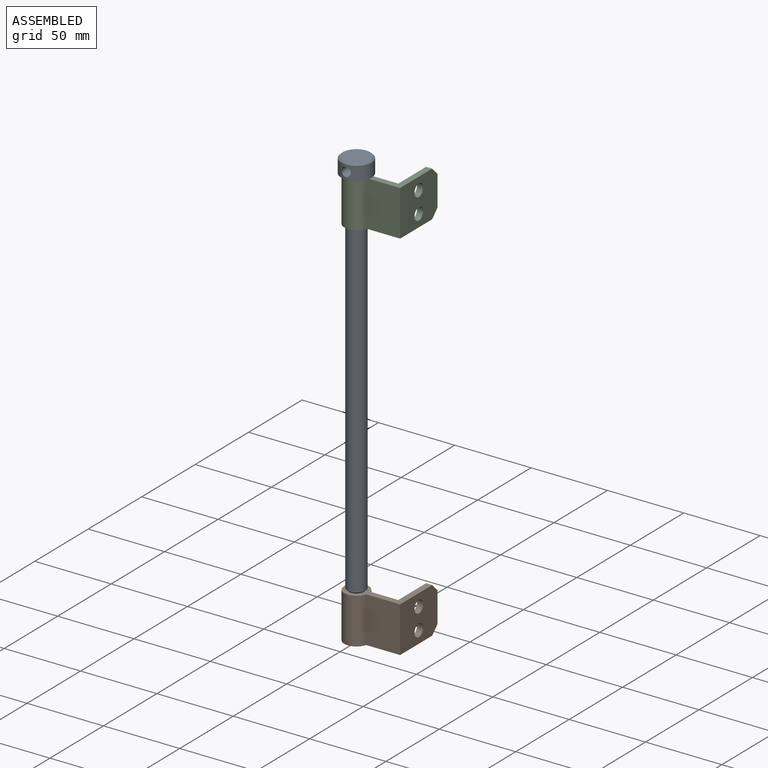
[diagram: assembled view]
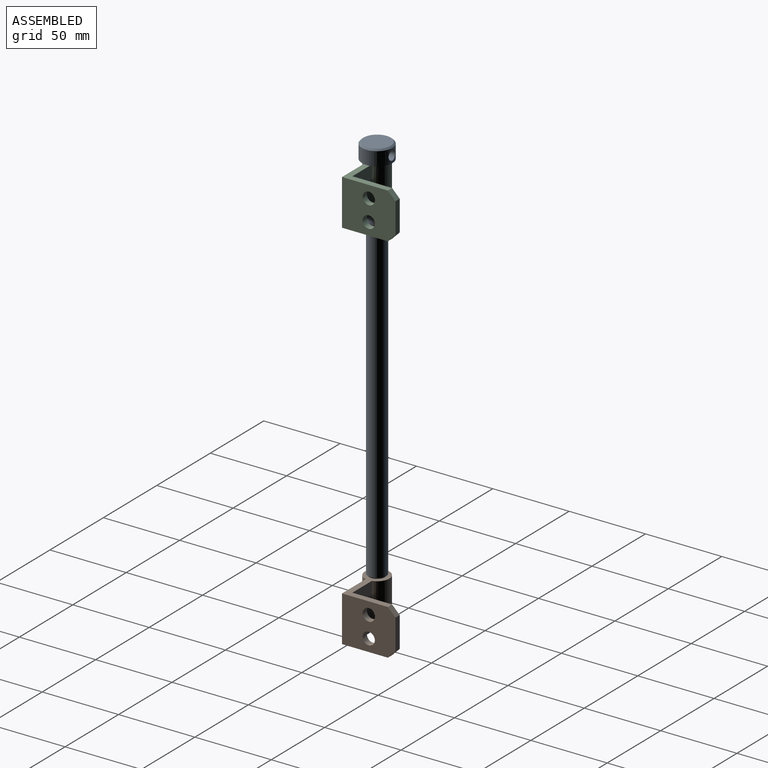
[diagram: assembled view, second angle]
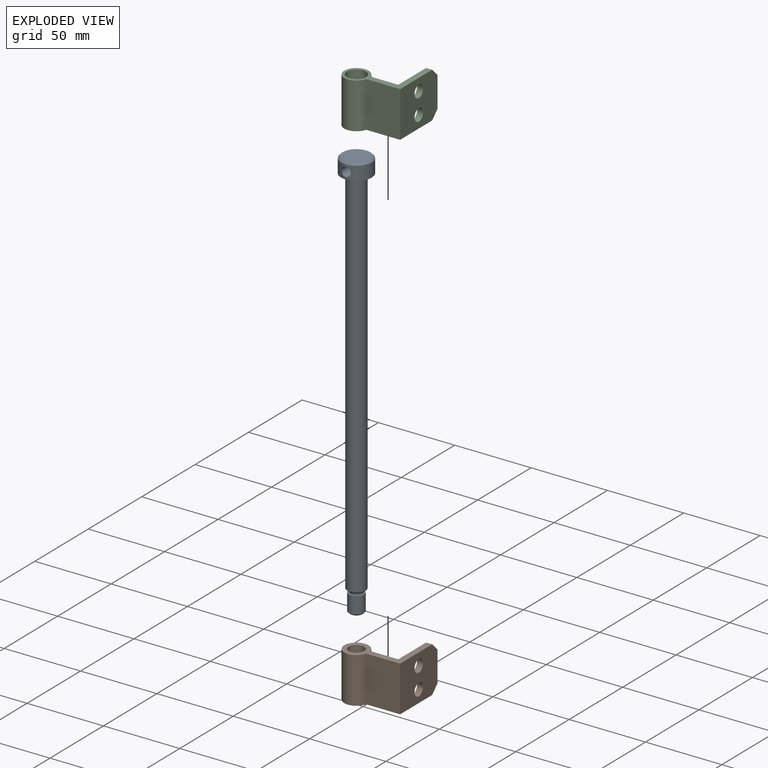
[diagram: exploded view]
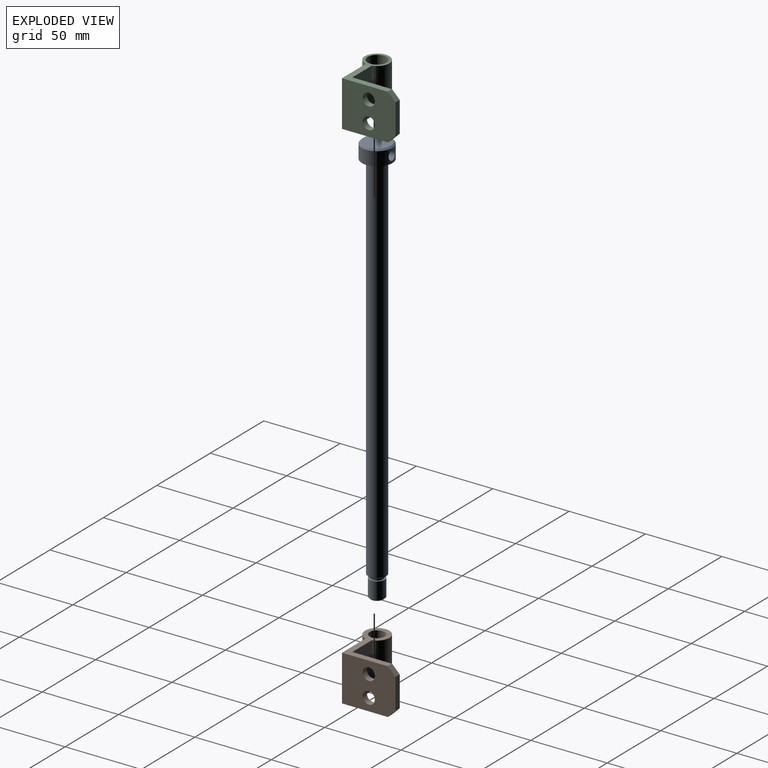
[diagram: exploded view, second angle]
ASSEMBLY  parts=3 mates=2
PART A: 13 faces, bbox 270x20x20 mm
  f0: plane 10x10mm, normal (1,0,0), area 28.3mm2, adj f8,f11
  f1: cylinder r=6mm len=245.5mm, axis (-1,0,0), area 9255.1mm2, adj f2,f11
  f2: plane 20x20mm, normal (1,0,0), area 201.1mm2, adj f1,f3
  f3: cylinder r=10mm len=20mm, axis (-1,0,0), area 508.2mm2, adj f2,f10,f12
  f4: plane 18x18mm, normal (-1,0,0), area 254.5mm2, adj f10
  f5: plane 8x8mm, normal (1,0,0), area 50.3mm2, adj f9
  f6: cylinder r=5mm len=11mm, axis (-1,0,0), area 345.6mm2, adj f7,f9
  f7: plane 10x10mm, normal (-1,0,0), area 28.3mm2, adj f6,f8
  f8: cylinder r=4mm len=8mm, axis (-1,0,0), area 37.7mm2, adj f0,f7
  f9: cone r=5mm half-angle=45deg, axis (-1,0,0), area 40mm2, adj f5,f6
  f10: cone r=9mm half-angle=45deg, axis (1,0,0), area 84.4mm2, adj f3,f4
  f11: cone r=6mm half-angle=45deg, axis (-1,0,0), area 48.9mm2, adj f0,f1
  f12: cylinder r=3mm len=20mm, axis (0,-1,0), area 368.4mm2, adj f3
PART B: 13 faces, bbox 38x41x30 mm
  f0: plane 35x30mm, normal (1,0,0), area 924.5mm2, adj f1,f6,f7,f8,f9,f10,f11,f12
  f1: plane 20x4mm, normal (0,1,0), area 80mm2, adj f0,f2,f11,f12
  f2: plane 31x30mm, normal (-1,0,0), area 804.5mm2, adj f1,f3,f7,f8,f9,f10,f11,f12
  f3: plane 30x18.25mm, normal (0,1,0), area 547.6mm2, adj f2,f4,f7,f8
  f4: cylinder r=8mm len=30mm, axis (0,0,-1), area 1386.7mm2, adj f3,f6,f7,f8
  f5: cylinder r=5mm len=30mm, axis (0,0,-1), area 942.5mm2, adj f7,f8
  f6: plane 30x22.25mm, normal (0,-1,0), area 667.6mm2, adj f0,f4,f7,f8
  f7: plane 38x36mm, normal (0,0,1), area 314.9mm2, adj f0,f2,f3,f4,f5,f6,f12
  f8: plane 38x36mm, normal (0,0,-1), area 314.9mm2, adj f0,f2,f3,f4,f5,f6,f11
  f9: cylinder r=4mm len=8mm, axis (1,0,0), area 100.5mm2, adj f0,f2
  f10: cylinder r=4mm len=8mm, axis (1,0,0), area 100.5mm2, adj f0,f2
  f11: plane 5x5mm, normal (0,0.71,-0.71), area 28.3mm2, adj f0,f1,f2,f8
  f12: plane 5x5mm, normal (0,0.71,0.71), area 28.3mm2, adj f0,f1,f2,f7
PART C: 13 faces, bbox 38x41x30 mm
  f0: plane 35x30mm, normal (1,0,0), area 924.5mm2, adj f1,f6,f7,f8,f9,f10,f11,f12
  f1: plane 20x4mm, normal (0,1,0), area 80mm2, adj f0,f2,f11,f12
  f2: plane 31x30mm, normal (-1,0,0), area 804.5mm2, adj f1,f3,f7,f8,f9,f10,f11,f12
  f3: plane 30x18.25mm, normal (0,1,0), area 547.6mm2, adj f2,f4,f7,f8
  f4: cylinder r=8mm len=30mm, axis (0,0,-1), area 1386.7mm2, adj f3,f6,f7,f8
  f5: cylinder r=6.25mm len=30mm, axis (0,0,-1), area 1178.1mm2, adj f7,f8
  f6: plane 30x22.25mm, normal (0,-1,0), area 667.6mm2, adj f0,f4,f7,f8
  f7: plane 38x36mm, normal (0,0,1), area 270.7mm2, adj f0,f2,f3,f4,f5,f6,f12
  f8: plane 38x36mm, normal (0,0,-1), area 270.7mm2, adj f0,f2,f3,f4,f5,f6,f11
  f9: cylinder r=4mm len=8mm, axis (1,0,0), area 100.5mm2, adj f0,f2
  f10: cylinder r=4mm len=8mm, axis (1,0,0), area 100.5mm2, adj f0,f2
  f11: plane 5x5mm, normal (0,0.71,-0.71), area 28.3mm2, adj f0,f1,f2,f8
  f12: plane 5x5mm, normal (0,0.71,0.71), area 28.3mm2, adj f0,f1,f2,f7
PLACE A rot(axis=(0.71,0,-0.71),180deg) t=(-2.58,-2.45,-64.81)mm
PLACE B t=(-2.58,-2.45,-248.16)mm
PLACE C t=(-2.58,-2.45,-1.66)mm fixed
MATE revolute A.f1 <-> B.f4  axis (0,0,-1) through (-2.58,-2.45,-218.16)mm
MATE revolute C.f4 <-> A.f1  axis (0,0,1) through (-2.58,-2.45,28.34)mm
